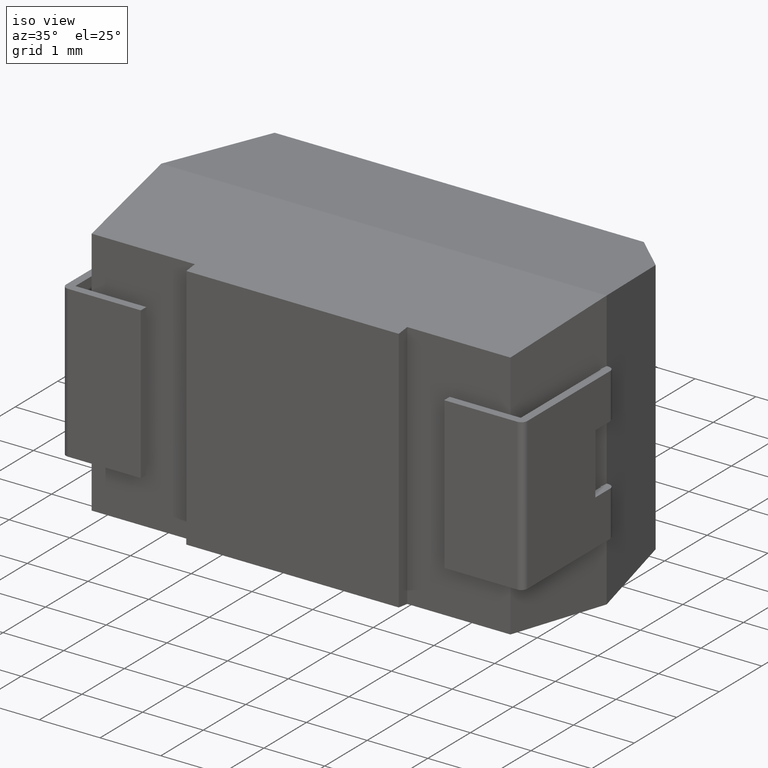
[diagram: clean part render]
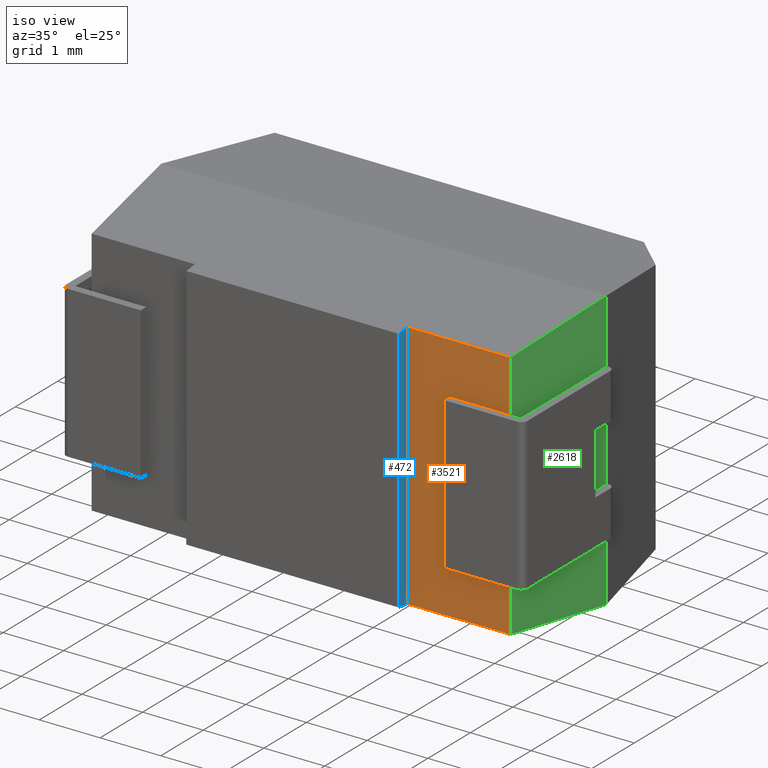
[diagram: same view with three faces highlighted in distinct colors, each labeled with its STEP entity id]
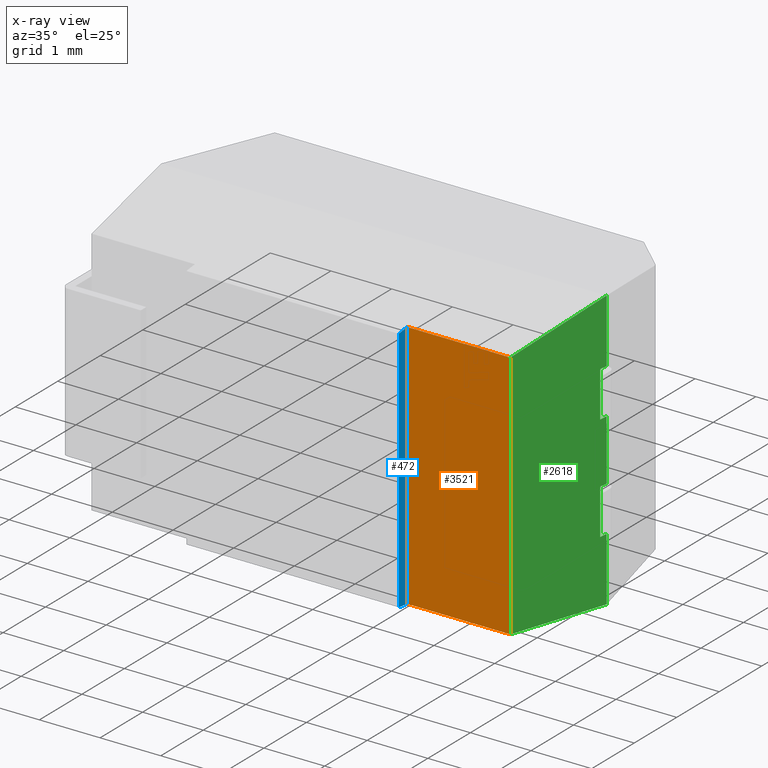
[diagram: x-ray of the same camera — body ghosted, the three highlighted faces saturated]
A machine part, iso view with three faces highlighted in distinct colors.
The next image is the same camera in x-ray (body ghosted, the three faces saturated) — at least one of them is partly hidden behind the body in this view.
Their STEP definitions:

[orange] entity #3521 — the highlighted planar face has unit normal (-0, 1, 0).
#99 = EDGE_CURVE ( 'NONE', #2189, #2861, #1448, .T. ) ;
#117 = LINE ( 'NONE', #420, #1208 ) ;
#150 = VECTOR ( 'NONE', #1533, 1000.000000000000000 ) ;
#165 = ORIENTED_EDGE ( 'NONE', *, *, #1912, .T. ) ;
#420 = CARTESIAN_POINT ( 'NONE',  ( 0.000000000000000000, 0.2000000000000000389, -0.2382265116279069783 ) ) ;
#621 = EDGE_CURVE ( 'NONE', #2861, #1273, #117, .T. ) ;
#683 = PLANE ( 'NONE',  #2993 ) ;
#792 = DIRECTION ( 'NONE',  ( 0.000000000000000000, -0.000000000000000000, 1.000000000000000000 ) ) ;
#864 = DIRECTION ( 'NONE',  ( -0.000000000000000000, -0.000000000000000000, 1.000000000000000000 ) ) ;
#917 = VECTOR ( 'NONE', #3283, 1000.000000000000000 ) ;
#1123 = ORIENTED_EDGE ( 'NONE', *, *, #621, .F. ) ;
#1208 = VECTOR ( 'NONE', #1297, 1000.000000000000000 ) ;
#1226 = CARTESIAN_POINT ( 'NONE',  ( 5.419999999999999041, 0.2000000000000000389, -4.361773488372093333 ) ) ;
#1273 = VERTEX_POINT ( 'NONE', #2054 ) ;
#1291 = VERTEX_POINT ( 'NONE', #3237 ) ;
#1297 = DIRECTION ( 'NONE',  ( 1.000000000000000000, 0.000000000000000000, 0.000000000000000000 ) ) ;
#1448 = LINE ( 'NONE', #2651, #2990 ) ;
#1533 = DIRECTION ( 'NONE',  ( -0.000000000000000000, -0.000000000000000000, 1.000000000000000000 ) ) ;
#1599 = FACE_OUTER_BOUND ( 'NONE', #2881, .T. ) ;
#1601 = ORIENTED_EDGE ( 'NONE', *, *, #99, .F. ) ;
#1912 = EDGE_CURVE ( 'NONE', #2189, #1291, #2998, .T. ) ;
#1998 = DIRECTION ( 'NONE',  ( -0.000000000000000000, 1.000000000000000000, 0.000000000000000000 ) ) ;
#2054 = CARTESIAN_POINT ( 'NONE',  ( 7.119646372093022535, 0.1999999999999999833, -0.2382265116279078387 ) ) ;
#2189 = VERTEX_POINT ( 'NONE', #1226 ) ;
#2337 = CARTESIAN_POINT ( 'NONE',  ( 0.000000000000000000, 0.2000000000000000389, -4.361773488372093333 ) ) ;
#2603 = CARTESIAN_POINT ( 'NONE',  ( 5.419999999999999041, 0.1999999999999999833, -0.2382265116279078387 ) ) ;
#2651 = CARTESIAN_POINT ( 'NONE',  ( 5.419999999999999041, 0.2000000000000000389, -4.599999999999999645 ) ) ;
#2760 = LINE ( 'NONE', #3329, #150 ) ;
#2861 = VERTEX_POINT ( 'NONE', #2603 ) ;
#2881 = EDGE_LOOP ( 'NONE', ( #1601, #165, #3437, #1123 ) ) ;
#2990 = VECTOR ( 'NONE', #864, 1000.000000000000000 ) ;
#2993 = AXIS2_PLACEMENT_3D ( 'NONE', #3751, #1998, #792 ) ;
#2998 = LINE ( 'NONE', #2337, #917 ) ;
#3237 = CARTESIAN_POINT ( 'NONE',  ( 7.119646372093022535, 0.2000000000000000389, -4.361773488372093333 ) ) ;
#3283 = DIRECTION ( 'NONE',  ( 1.000000000000000000, 0.000000000000000000, 0.000000000000000000 ) ) ;
#3329 = CARTESIAN_POINT ( 'NONE',  ( 7.119646372093022535, 0.2000000000000000389, -4.599999999999999645 ) ) ;
#3437 = ORIENTED_EDGE ( 'NONE', *, *, #3767, .T. ) ;
#3521 = ADVANCED_FACE ( 'NONE', ( #1599 ), #683, .F. ) ;
#3751 = CARTESIAN_POINT ( 'NONE',  ( 5.419999999999999041, 0.2000000000000000389, -4.599999999999999645 ) ) ;
#3767 = EDGE_CURVE ( 'NONE', #1291, #1273, #2760, .T. ) ;

[blue] entity #472 — the highlighted planar face has unit normal (-1, 0, 0).
#99 = EDGE_CURVE ( 'NONE', #2189, #2861, #1448, .T. ) ;
#107 = EDGE_LOOP ( 'NONE', ( #2111, #1197, #786, #751 ) ) ;
#343 = DIRECTION ( 'NONE',  ( -0.000000000000000000, -0.000000000000000000, 1.000000000000000000 ) ) ;
#472 = ADVANCED_FACE ( 'NONE', ( #2591 ), #2503, .F. ) ;
#508 = DIRECTION ( 'NONE',  ( 0.000000000000000000, 0.000000000000000000, 1.000000000000000000 ) ) ;
#649 = DIRECTION ( 'NONE',  ( 0.000000000000000000, 0.9926200645997470540, -0.1212658540315205286 ) ) ;
#751 = ORIENTED_EDGE ( 'NONE', *, *, #2530, .F. ) ;
#781 = EDGE_CURVE ( 'NONE', #3122, #2004, #1710, .T. ) ;
#786 = ORIENTED_EDGE ( 'NONE', *, *, #99, .T. ) ;
#817 = LINE ( 'NONE', #2290, #1318 ) ;
#864 = DIRECTION ( 'NONE',  ( -0.000000000000000000, -0.000000000000000000, 1.000000000000000000 ) ) ;
#1197 = ORIENTED_EDGE ( 'NONE', *, *, #3502, .T. ) ;
#1226 = CARTESIAN_POINT ( 'NONE',  ( 5.419999999999999041, 0.2000000000000000389, -4.361773488372093333 ) ) ;
#1318 = VECTOR ( 'NONE', #3463, 1000.000000000000114 ) ;
#1328 = CARTESIAN_POINT ( 'NONE',  ( 5.419999999999999041, 7.692006545444519802E-18, -4.599999999999999645 ) ) ;
#1448 = LINE ( 'NONE', #2651, #2990 ) ;
#1670 = CARTESIAN_POINT ( 'NONE',  ( 5.419999999999999041, 7.692006545444518261E-18, -4.337340000000000195 ) ) ;
#1710 = LINE ( 'NONE', #1786, #2106 ) ;
#1786 = CARTESIAN_POINT ( 'NONE',  ( 5.419999999999999041, 7.692006545444519802E-18, -4.599999999999999645 ) ) ;
#2004 = VERTEX_POINT ( 'NONE', #3677 ) ;
#2067 = AXIS2_PLACEMENT_3D ( 'NONE', #1328, #3747, #508 ) ;
#2106 = VECTOR ( 'NONE', #343, 1000.000000000000000 ) ;
#2111 = ORIENTED_EDGE ( 'NONE', *, *, #781, .F. ) ;
#2189 = VERTEX_POINT ( 'NONE', #1226 ) ;
#2193 = LINE ( 'NONE', #3688, #2690 ) ;
#2290 = CARTESIAN_POINT ( 'NONE',  ( 5.419999999999999041, 7.692006545444518261E-18, -0.2626599999999999491 ) ) ;
#2503 = PLANE ( 'NONE',  #2067 ) ;
#2530 = EDGE_CURVE ( 'NONE', #2004, #2861, #817, .T. ) ;
#2591 = FACE_OUTER_BOUND ( 'NONE', #107, .T. ) ;
#2603 = CARTESIAN_POINT ( 'NONE',  ( 5.419999999999999041, 0.1999999999999999833, -0.2382265116279078387 ) ) ;
#2651 = CARTESIAN_POINT ( 'NONE',  ( 5.419999999999999041, 0.2000000000000000389, -4.599999999999999645 ) ) ;
#2690 = VECTOR ( 'NONE', #649, 1000.000000000000114 ) ;
#2861 = VERTEX_POINT ( 'NONE', #2603 ) ;
#2990 = VECTOR ( 'NONE', #864, 1000.000000000000000 ) ;
#3122 = VERTEX_POINT ( 'NONE', #1670 ) ;
#3463 = DIRECTION ( 'NONE',  ( 0.000000000000000000, 0.9926200645997470540, 0.1212658540315205286 ) ) ;
#3502 = EDGE_CURVE ( 'NONE', #3122, #2189, #2193, .T. ) ;
#3677 = CARTESIAN_POINT ( 'NONE',  ( 5.419999999999999041, -7.713716178691422629E-17, -0.2626600000000006707 ) ) ;
#3688 = CARTESIAN_POINT ( 'NONE',  ( 5.419999999999999041, 7.692006545444518261E-18, -4.337340000000000195 ) ) ;
#3747 = DIRECTION ( 'NONE',  ( -1.000000000000000000, 0.000000000000000000, 0.000000000000000000 ) ) ;

[green] entity #2618 — the highlighted planar face has unit normal (-0.9937, 0.1123, 0).
#150 = VECTOR ( 'NONE', #1533, 1000.000000000000000 ) ;
#270 = DIRECTION ( 'NONE',  ( -0.9936757930662341032, 0.1122872133156344043, 0.000000000000000000 ) ) ;
#349 = DIRECTION ( 'NONE',  ( 0.000000000000000000, 0.000000000000000000, -1.000000000000000000 ) ) ;
#366 = VERTEX_POINT ( 'NONE', #372 ) ;
#372 = CARTESIAN_POINT ( 'NONE',  ( 7.325309758139535887, 2.020000000000003570, -1.050000000000000044 ) ) ;
#426 = LINE ( 'NONE', #3698, #1381 ) ;
#438 = VECTOR ( 'NONE', #2708, 1000.000000000000227 ) ;
#442 = VERTEX_POINT ( 'NONE', #2572 ) ;
#456 = CARTESIAN_POINT ( 'NONE',  ( 7.339999999999999858, 2.150000000000003464, -4.599999999999999645 ) ) ;
#473 = ORIENTED_EDGE ( 'NONE', *, *, #788, .T. ) ;
#491 = LINE ( 'NONE', #1045, #601 ) ;
#601 = VECTOR ( 'NONE', #1974, 1000.000000000000000 ) ;
#696 = LINE ( 'NONE', #2130, #2022 ) ;
#718 = LINE ( 'NONE', #1838, #3485 ) ;
#734 = ORIENTED_EDGE ( 'NONE', *, *, #3808, .T. ) ;
#769 = DIRECTION ( 'NONE',  ( 0.000000000000000000, -0.000000000000000000, 1.000000000000000000 ) ) ;
#788 = EDGE_CURVE ( 'NONE', #2893, #1273, #906, .T. ) ;
#906 = LINE ( 'NONE', #1517, #438 ) ;
#947 = LINE ( 'NONE', #3305, #3794 ) ;
#1041 = DIRECTION ( 'NONE',  ( 0.1122872133156344043, 0.9936757930662341032, 3.314909087965133123E-15 ) ) ;
#1045 = CARTESIAN_POINT ( 'NONE',  ( 7.325809217483254088, 2.024419921421321433, -1.800000000000000044 ) ) ;
#1081 = ORIENTED_EDGE ( 'NONE', *, *, #1342, .F. ) ;
#1100 = EDGE_CURVE ( 'NONE', #2621, #366, #1525, .T. ) ;
#1127 = DIRECTION ( 'NONE',  ( 0.1122872133156344043, 0.9936757930662341032, 0.000000000000000000 ) ) ;
#1134 = VECTOR ( 'NONE', #769, 1000.000000000000000 ) ;
#1139 = LINE ( 'NONE', #3415, #1134 ) ;
#1160 = VERTEX_POINT ( 'NONE', #1495 ) ;
#1198 = VERTEX_POINT ( 'NONE', #1951 ) ;
#1204 = CARTESIAN_POINT ( 'NONE',  ( 7.007563475520828256, -0.7918677100612501185, -1.049999999999999822 ) ) ;
#1273 = VERTEX_POINT ( 'NONE', #2054 ) ;
#1291 = VERTEX_POINT ( 'NONE', #3237 ) ;
#1342 = EDGE_CURVE ( 'NONE', #366, #442, #696, .T. ) ;
#1344 = CARTESIAN_POINT ( 'NONE',  ( 7.325809217483254088, 2.024419921421321433, -2.799999999999999822 ) ) ;
#1381 = VECTOR ( 'NONE', #2221, 1000.000000000000227 ) ;
#1421 = VERTEX_POINT ( 'NONE', #2150 ) ;
#1440 = VECTOR ( 'NONE', #2785, 1000.000000000000000 ) ;
#1457 = DIRECTION ( 'NONE',  ( -0.1122872133156344043, -0.9936757930662341032, 0.000000000000000000 ) ) ;
#1473 = ORIENTED_EDGE ( 'NONE', *, *, #2773, .F. ) ;
#1495 = CARTESIAN_POINT ( 'NONE',  ( 7.339999999999999858, 2.150000000000003464, -3.550000000000000266 ) ) ;
#1510 = CARTESIAN_POINT ( 'NONE',  ( 7.339999999999999858, 2.150000000000003464, -4.599999999999999645 ) ) ;
#1517 = CARTESIAN_POINT ( 'NONE',  ( 6.950598962782512658, -1.295970142568551031, -0.4209853570451412841 ) ) ;
#1525 = LINE ( 'NONE', #1204, #2391 ) ;
#1533 = DIRECTION ( 'NONE',  ( -0.000000000000000000, -0.000000000000000000, 1.000000000000000000 ) ) ;
#1602 = EDGE_CURVE ( 'NONE', #2159, #442, #491, .T. ) ;
#1717 = FACE_OUTER_BOUND ( 'NONE', #3128, .T. ) ;
#1723 = ORIENTED_EDGE ( 'NONE', *, *, #2463, .F. ) ;
#1838 = CARTESIAN_POINT ( 'NONE',  ( 7.339999999999999858, 2.150000000000003464, -4.599999999999999645 ) ) ;
#1918 = LINE ( 'NONE', #456, #1440 ) ;
#1949 = ORIENTED_EDGE ( 'NONE', *, *, #3350, .F. ) ;
#1951 = CARTESIAN_POINT ( 'NONE',  ( 7.340000000000000746, 2.150000000000003464, -2.799999999999999822 ) ) ;
#1974 = DIRECTION ( 'NONE',  ( -0.1122872133156344043, -0.9936757930662341032, 0.000000000000000000 ) ) ;
#2022 = VECTOR ( 'NONE', #2738, 1000.000000000000000 ) ;
#2054 = CARTESIAN_POINT ( 'NONE',  ( 7.119646372093022535, 0.1999999999999999833, -0.2382265116279078387 ) ) ;
#2085 = PLANE ( 'NONE',  #2305 ) ;
#2087 = EDGE_CURVE ( 'NONE', #3055, #1198, #2585, .T. ) ;
#2091 = CARTESIAN_POINT ( 'NONE',  ( 7.340000000000000746, 2.150000000000003464, -1.800000000000000044 ) ) ;
#2130 = CARTESIAN_POINT ( 'NONE',  ( 7.325309758139535887, 2.020000000000003570, -4.599999999999999645 ) ) ;
#2141 = ORIENTED_EDGE ( 'NONE', *, *, #3767, .F. ) ;
#2150 = CARTESIAN_POINT ( 'NONE',  ( 7.325309758139535887, 2.020000000000003570, -3.550000000000000266 ) ) ;
#2159 = VERTEX_POINT ( 'NONE', #2091 ) ;
#2169 = ORIENTED_EDGE ( 'NONE', *, *, #1602, .T. ) ;
#2211 = VERTEX_POINT ( 'NONE', #1510 ) ;
#2221 = DIRECTION ( 'NONE',  ( -0.1114688752436080177, -0.9864339824565848680, 0.1205101162009517002 ) ) ;
#2232 = CARTESIAN_POINT ( 'NONE',  ( 7.339999999999998970, 2.150000000000003464, -1.049999999999999822 ) ) ;
#2305 = AXIS2_PLACEMENT_3D ( 'NONE', #2920, #270, #1457 ) ;
#2328 = ORIENTED_EDGE ( 'NONE', *, *, #3242, .T. ) ;
#2391 = VECTOR ( 'NONE', #3581, 1000.000000000000000 ) ;
#2443 = LINE ( 'NONE', #2582, #3789 ) ;
#2463 = EDGE_CURVE ( 'NONE', #1421, #1160, #2443, .T. ) ;
#2572 = CARTESIAN_POINT ( 'NONE',  ( 7.325309758139535887, 2.020000000000003570, -1.800000000000000044 ) ) ;
#2582 = CARTESIAN_POINT ( 'NONE',  ( 7.007563475520828256, -0.7918677100612536712, -3.550000000000009592 ) ) ;
#2585 = LINE ( 'NONE', #1344, #2713 ) ;
#2618 = ADVANCED_FACE ( 'NONE', ( #1717 ), #2085, .F. ) ;
#2621 = VERTEX_POINT ( 'NONE', #2232 ) ;
#2643 = EDGE_CURVE ( 'NONE', #2211, #1160, #1918, .T. ) ;
#2708 = DIRECTION ( 'NONE',  ( -0.1114688752436080177, -0.9864339824565848680, -0.1205101162009517002 ) ) ;
#2713 = VECTOR ( 'NONE', #1127, 1000.000000000000000 ) ;
#2738 = DIRECTION ( 'NONE',  ( 0.000000000000000000, 0.000000000000000000, -1.000000000000000000 ) ) ;
#2760 = LINE ( 'NONE', #3329, #150 ) ;
#2767 = CARTESIAN_POINT ( 'NONE',  ( 7.325309758139535887, 2.020000000000003570, -2.799999999999999822 ) ) ;
#2773 = EDGE_CURVE ( 'NONE', #2211, #1291, #426, .T. ) ;
#2785 = DIRECTION ( 'NONE',  ( -0.000000000000000000, -0.000000000000000000, 1.000000000000000000 ) ) ;
#2893 = VERTEX_POINT ( 'NONE', #3774 ) ;
#2920 = CARTESIAN_POINT ( 'NONE',  ( 7.007563475520828256, -0.7918677100612501185, -4.599999999999999645 ) ) ;
#3055 = VERTEX_POINT ( 'NONE', #2767 ) ;
#3128 = EDGE_LOOP ( 'NONE', ( #1949, #3455, #2328, #2169, #1081, #3749, #734, #473, #2141, #1473, #3625, #1723 ) ) ;
#3237 = CARTESIAN_POINT ( 'NONE',  ( 7.119646372093022535, 0.2000000000000000389, -4.361773488372093333 ) ) ;
#3242 = EDGE_CURVE ( 'NONE', #1198, #2159, #1139, .T. ) ;
#3305 = CARTESIAN_POINT ( 'NONE',  ( 7.325309758139535887, 2.020000000000003570, -4.599999999999999645 ) ) ;
#3329 = CARTESIAN_POINT ( 'NONE',  ( 7.119646372093022535, 0.2000000000000000389, -4.599999999999999645 ) ) ;
#3350 = EDGE_CURVE ( 'NONE', #3055, #1421, #947, .T. ) ;
#3415 = CARTESIAN_POINT ( 'NONE',  ( 7.340000000000000746, 2.150000000000003464, -1.800000000000000044 ) ) ;
#3455 = ORIENTED_EDGE ( 'NONE', *, *, #2087, .T. ) ;
#3485 = VECTOR ( 'NONE', #3622, 1000.000000000000000 ) ;
#3581 = DIRECTION ( 'NONE',  ( -0.1122872133156344043, -0.9936757930662341032, 0.000000000000000000 ) ) ;
#3622 = DIRECTION ( 'NONE',  ( -0.000000000000000000, -0.000000000000000000, 1.000000000000000000 ) ) ;
#3625 = ORIENTED_EDGE ( 'NONE', *, *, #2643, .T. ) ;
#3698 = CARTESIAN_POINT ( 'NONE',  ( 7.012391347481136350, -0.7491438828566621133, -4.245819008245986126 ) ) ;
#3749 = ORIENTED_EDGE ( 'NONE', *, *, #1100, .F. ) ;
#3767 = EDGE_CURVE ( 'NONE', #1291, #1273, #2760, .T. ) ;
#3774 = CARTESIAN_POINT ( 'NONE',  ( 7.339999999999999858, 2.150000000000003464, 0.000000000000000000 ) ) ;
#3789 = VECTOR ( 'NONE', #1041, 1000.000000000000000 ) ;
#3794 = VECTOR ( 'NONE', #349, 1000.000000000000000 ) ;
#3808 = EDGE_CURVE ( 'NONE', #2621, #2893, #718, .T. ) ;